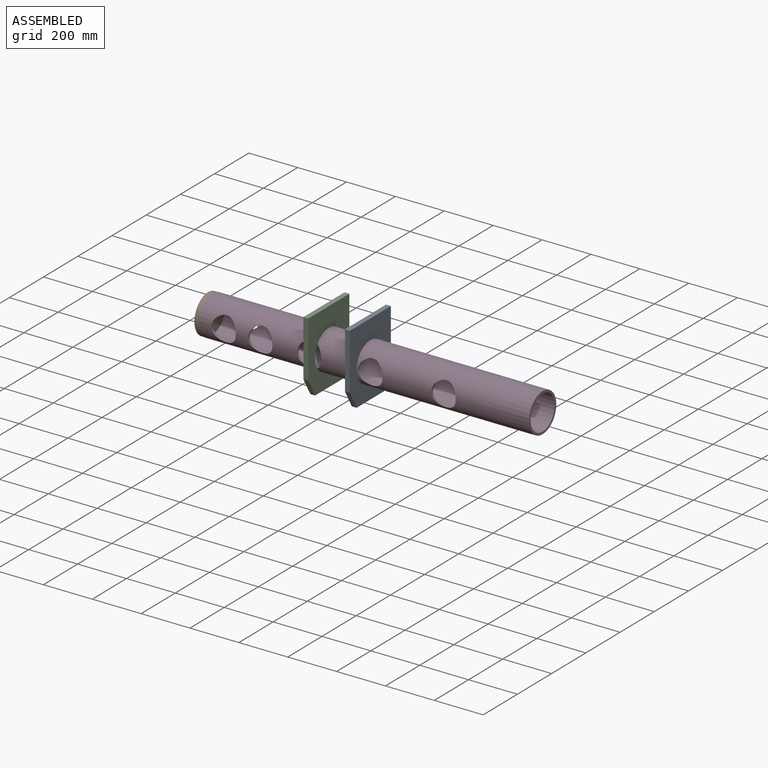
[diagram: assembled view]
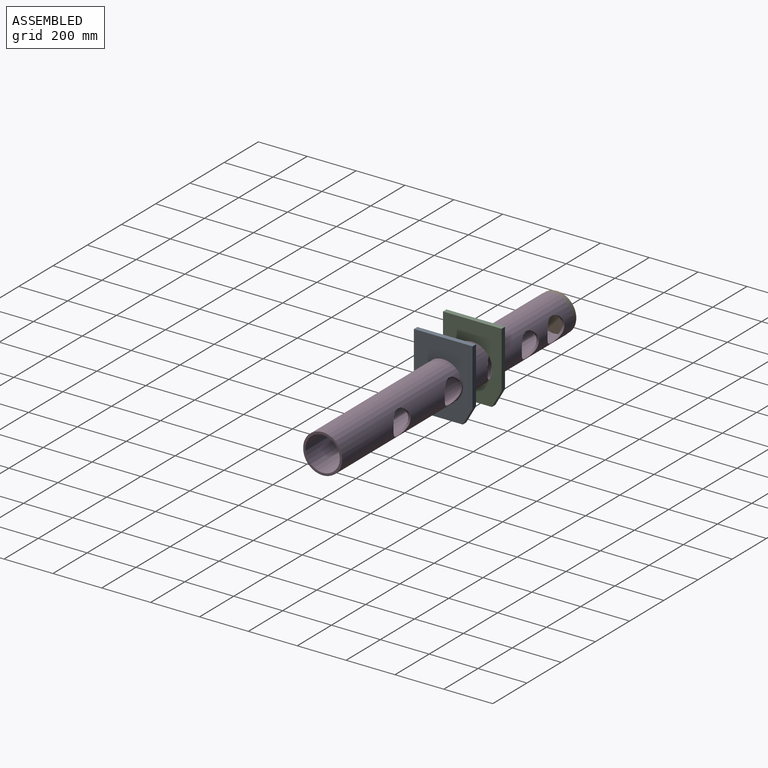
[diagram: assembled view, second angle]
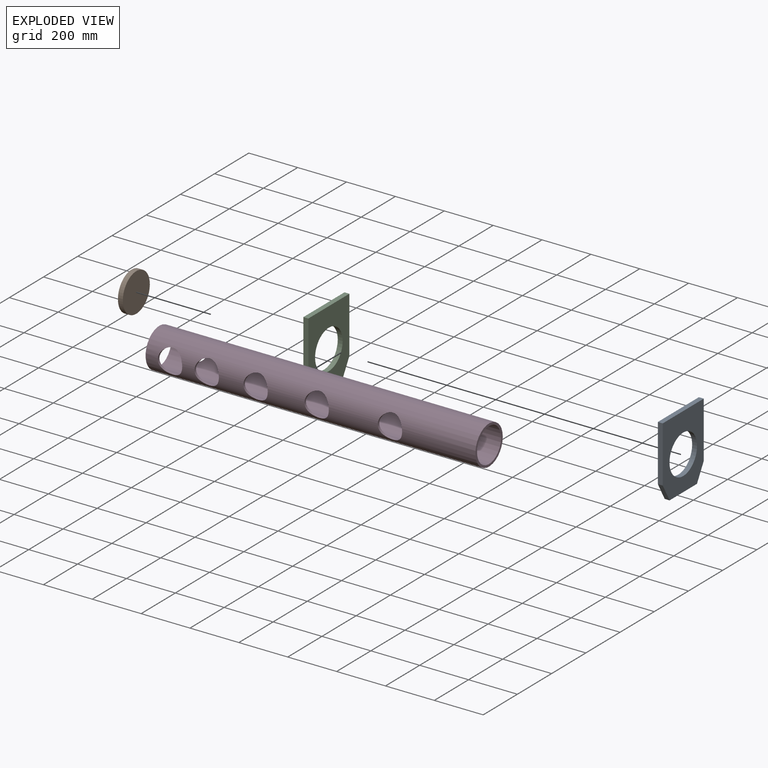
[diagram: exploded view]
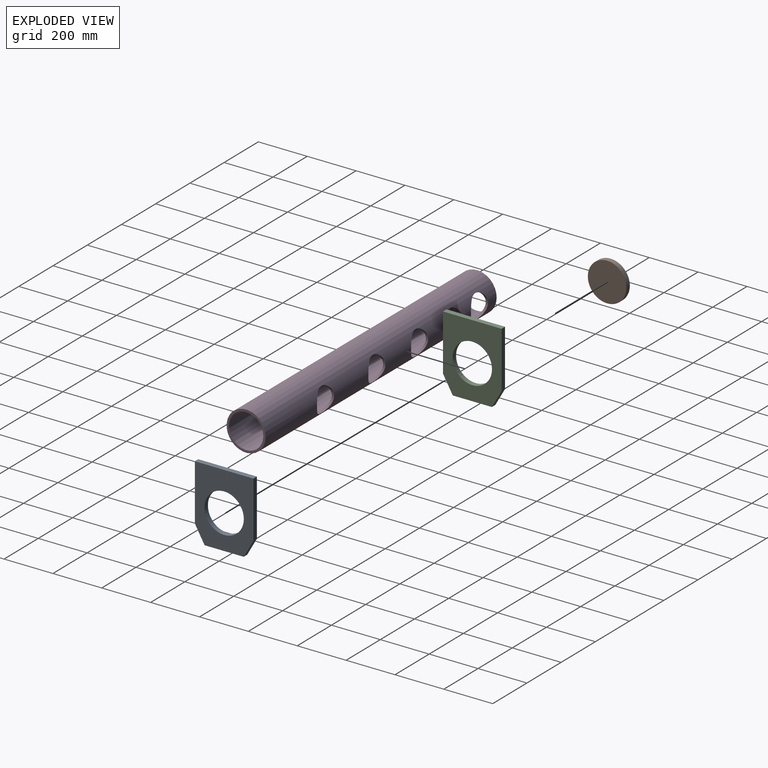
[diagram: exploded view, second angle]
ASSEMBLY  parts=4 mates=3
PART A: 9 faces, bbox 240x300x20 mm
  f0: plane 230x20mm, normal (1,0,0), area 4600mm2, adj f1,f5,f7,f8
  f1: plane 240x20mm, normal (0,1,0), area 4800mm2, adj f0,f2,f7,f8
  f2: plane 230x20mm, normal (-1,0,0), area 4600mm2, adj f1,f3,f7,f8
  f3: plane 70x40mm, normal (-0.87,-0.5,0), area 1612.5mm2, adj f2,f4,f7,f8
  f4: plane 160x20mm, normal (0,-1,0), area 3200mm2, adj f3,f5,f7,f8
  f5: plane 70x40mm, normal (0.87,-0.5,0), area 1612.5mm2, adj f0,f4,f7,f8
  f6: cylinder r=80.5mm len=161mm, axis (0,0,-1), area 10115.9mm2, adj f7,f8
  f7: plane 300x240mm, normal (0,0,1), area 48841.7mm2, adj f0,f1,f2,f3,f4,f5,f6
  f8: plane 300x240mm, normal (0,0,-1), area 48841.7mm2, adj f0,f1,f2,f3,f4,f5,f6
PART B: 3 faces, bbox 158x20x158 mm
  f0: cylinder r=79mm len=158mm, axis (0,1,0), area 9927.4mm2, adj f1,f2
  f1: plane 158x158mm, normal (0,-1,0), area 19606.7mm2, adj f0
  f2: plane 158x158mm, normal (0,1,0), area 19606.7mm2, adj f0
PART C: same geometry as A
PART D: 14 faces, bbox 1350x160x160 mm
  f0: cylinder r=70.5mm len=1350mm, axis (-1,0,0), area 513252mm2, adj f2,f3,f4,f5,f6,f7,f8,f9
  f1: cylinder r=80mm len=1350mm, axis (-1,0,0), area 595514.7mm2, adj f2,f3,f4,f5,f6,f7,f8,f9
  f2: plane 160x160mm, normal (1,0,0), area 4491.7mm2, adj f0,f1
  f3: plane 160x160mm, normal (-1,0,0), area 4491.7mm2, adj f0,f1
  f4: cylinder r=50mm len=100mm, axis (0,0,-1), area 3438mm2, adj f0,f1
  f5: cylinder r=50mm len=100mm, axis (0,0,-1), area 3438.2mm2, adj f0,f1
  f6: cylinder r=50mm len=100mm, axis (0,0,-1), area 3438mm2, adj f0,f1
  f7: cylinder r=50mm len=100mm, axis (0,0,-1), area 3438.2mm2, adj f0,f1
  f8: cylinder r=50mm len=100mm, axis (0,0,-1), area 3438mm2, adj f0,f1
  f9: cylinder r=50mm len=100mm, axis (0,0,-1), area 3438.2mm2, adj f0,f1
  f10: cylinder r=50mm len=100mm, axis (0,0,-1), area 3438mm2, adj f0,f1
  f11: cylinder r=50mm len=100mm, axis (0,0,-1), area 3438.2mm2, adj f0,f1
  f12: cylinder r=50mm len=100mm, axis (0,0,-1), area 3438mm2, adj f0,f1
  f13: cylinder r=50mm len=100mm, axis (0,0,-1), area 3438.2mm2, adj f0,f1
PLACE A rot(axis=(0.58,-0.58,-0.58),120deg) t=(1281.79,194.57,239.43)mm
PLACE B rot(axis=(0.71,0.71,0),180deg) t=(636.79,195.05,210.55)mm
PLACE C rot(axis=(0.58,-0.58,-0.58),120deg) t=(1111.79,194.57,239.43)mm
PLACE D rot(axis=(1,0,0),90deg) t=(636.79,194.57,209.43)mm fixed
MATE fastened C.f6 <-> D.f0  axis (-1,0,0) through (1091.79,194.57,209.43)mm
MATE fastened B.f0 <-> D.f0  axis (1,0,0) through (636.79,194.57,209.43)mm
MATE fastened A.f6 <-> D.f0  axis (-1,0,0) through (1261.79,194.57,209.43)mm
